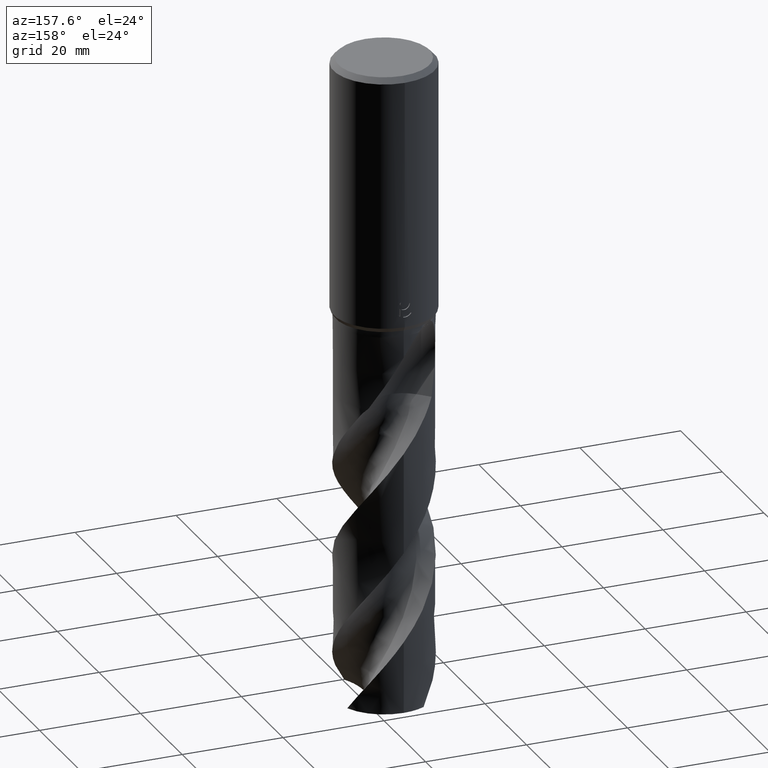
[diagram: clean part render]
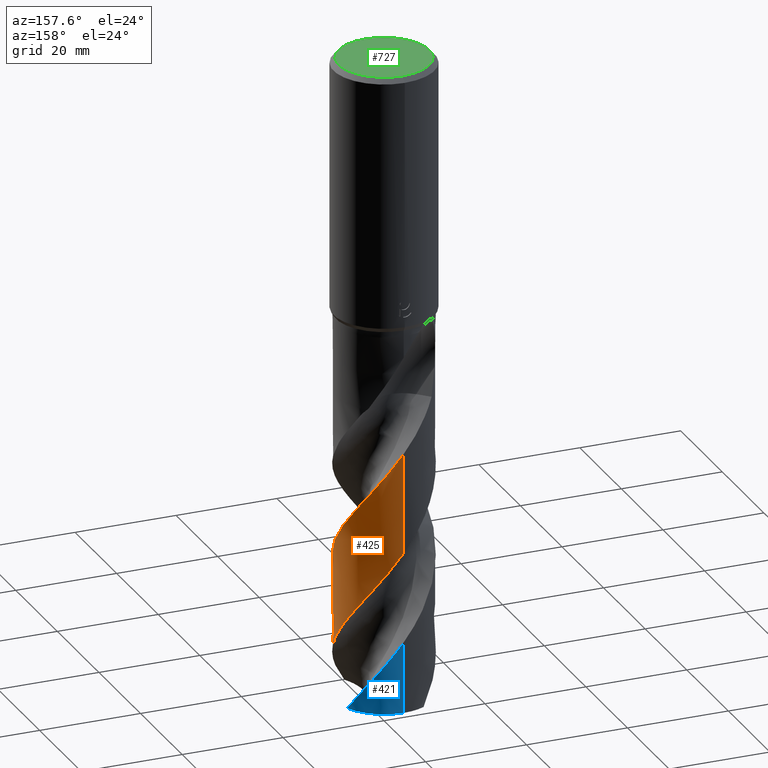
[diagram: same view with three faces highlighted in distinct colors, each labeled with its STEP entity id]
A machine part, auxiliary view with three faces highlighted in distinct colors.
Their STEP definitions:

[orange] entity #425 — the highlighted conical surface has half-angle 0 deg.
#321=EDGE_CURVE('',#641,#747,#835,.T.);
#325=EDGE_CURVE('',#587,#641,#839,.T.);
#405=VERTEX_POINT('',#926);
#413=EDGE_CURVE('',#405,#579,#935,.T.);
#425=ADVANCED_FACE('',(#948),#949,.T.);
#463=EDGE_CURVE('',#587,#579,#989,.T.);
#579=VERTEX_POINT('',#1120);
#587=VERTEX_POINT('',#1128);
#599=EDGE_CURVE('',#405,#747,#1141,.T.);
#641=VERTEX_POINT('',#1186);
#747=VERTEX_POINT('',#1299);
#835=LINE('',#2308,#2309);
#839=CIRCLE('',#2408,9.5);
#926=CARTESIAN_POINT('',(4.14276983890462E-012,9.49993127510534,-75.6259285171652));
#935=LINE('',#3554,#3555);
#948=FACE_OUTER_BOUND('',#3598,.T.);
#949=CONICAL_SURFACE('',#3599,9.49995,1.32376195591355E-006);
#989=B_SPLINE_CURVE_WITH_KNOTS('',3,(#4107,#4108,#4109,#4110,#4111,#4112,#4113,#4114,#4115,#4116,#4117,#4118,#4119,#4120,#4121,#4122,#4123,#4124,#4125,#4126,#4127,#4128,#4129,#4130,#4131,#4132,#4133,#4134,#4135,#4136,#4137,#4138,#4139,#4140,#4141,#4142,#4143,#4144,#4145,#4146,#4147,#4148,#4149,#4150,#4151,#4152,#4153,#4154,#4155,#4156,#4157,#4158,#4159,#4160,#4161,#4162,#4163,#4164,#4165,#4166,#4167,#4168,#4169,#4170,#4171,#4172,#4173,#4174,#4175,#4176,#4177,#4178),.UNSPECIFIED.,.F.,.F.,(4,2,2,2,2,2,2,2,2,2,2,2,2,2,2,2,2,2,2,2,2,2,2,2,2,2,2,2,2,2,2,2,2,2,2,4),(0.0,2.25914260804812,7.05540093486468,10.0013602743237,11.525308779896,15.6076635601463,17.1779518729622,20.1502651261482,22.9890170960466,25.797256080281,27.5445273664996,30.61587926302,32.2979809699629,35.9382480406374,37.4930035743223,41.2401558777265,42.7231155409448,46.6683371101798,48.4831300425192,51.9973399333413,52.8639731704536,57.517325872158,57.8185143682855,62.6662501608931,63.2658289232396,66.782459539289,69.0293320031936,69.5440674064811,71.1530631405118,74.2464719782456,75.5103423426842,77.4462231728296,78.3217903911569,79.5610317429915,81.0145387714411,83.9803835950082),.UNSPECIFIED.);
#1120=CARTESIAN_POINT('',(-2.18987726822183E-014,9.49995761745558,-95.5255412277767));
#1128=CARTESIAN_POINT('',(4.36296385263962,-8.43887115795472,-127.542282774471));
#1141=B_SPLINE_CURVE_WITH_KNOTS('',3,(#4895,#4896,#4897,#4898,#4899,#4900,#4901,#4902,#4903,#4904,#4905,#4906,#4907,#4908,#4909,#4910,#4911,#4912,#4913,#4914,#4915,#4916,#4917,#4918,#4919,#4920,#4921,#4922,#4923,#4924,#4925,#4926,#4927,#4928,#4929,#4930,#4931,#4932,#4933,#4934,#4935,#4936,#4937,#4938,#4939,#4940,#4941,#4942,#4943,#4944,#4945,#4946,#4947,#4948,#4949,#4950,#4951,#4952,#4953,#4954,#4955,#4956,#4957,#4958,#4959,#4960,#4961,#4962,#4963,#4964,#4965,#4966,#4967,#4968,#4969,#4970,#4971,#4972,#4973,#4974,#4975,#4976,#4977,#4978,#4979,#4980,#4981,#4982,#4983,#4984,#4985,#4986,#4987,#4988),.UNSPECIFIED.,.F.,.F.,(4,2,2,2,2,2,2,2,2,2,2,2,2,2,2,2,2,2,2,2,2,2,2,2,2,2,2,2,2,2,2,2,2,2,2,2,2,2,2,2,2,2,2,2,2,2,4),(0.0,0.251873114745319,1.49003797662436,1.88508295611504,2.13092462729175,2.35716562531013,3.13353898619032,4.18013328612654,4.8391896154843,5.93775068866211,6.81496746771318,8.02790693801513,9.75036124954665,13.2764121119158,14.4454626413057,15.6066048524763,17.9265469814777,19.0963696375069,21.4109942116154,23.7401063518811,26.0705932205949,28.3953471666892,29.5638751434541,30.7172765029423,33.0360551046798,34.2055673908724,36.5191789956901,38.8491949944035,41.1763968547088,43.5015904945778,44.6696144105601,45.820993287927,48.1405526795639,49.3096704018559,51.6196709283864,53.9501572730986,56.2743507798361,58.600024314909,59.68138169211,60.6859259939135,64.4629973942198,65.8887789725559,68.392227658279,69.3331984067516,70.9795003736366,73.4517760775509,75.9230375517967),.UNSPECIFIED.);
#1186=CARTESIAN_POINT('',(1.16176566323862E-015,-9.5,-127.542282774471));
#1299=CARTESIAN_POINT('',(1.56799148186068E-014,-9.49998125251191,-113.380002318758));
#2308=CARTESIAN_POINT('',(1.16175954020685E-015,-9.49995,-89.7711413872355));
#2309=VECTOR('',#5714,1.0);
#2408=AXIS2_PLACEMENT_3D('',#5715,#5716,#5717);
#3554=CARTESIAN_POINT('',(-1.16498028599213E-015,9.49995,-89.7711413872355));
#3555=VECTOR('',#5795,1.0);
#3598=EDGE_LOOP('',(#5808,#5809,#5810,#5811,#5812));
#3599=AXIS2_PLACEMENT_3D('',#5813,#5814,#5815);
#4107=CARTESIAN_POINT('',(4.36296385263967,-8.4388711579547,-127.542282774471));
#4108=CARTESIAN_POINT('',(4.77764588320916,-8.22447635244549,-126.951389998755));
#4109=CARTESIAN_POINT('',(5.17617352824739,-7.97970162147269,-126.362923391725));
#4110=CARTESIAN_POINT('',(6.3602270922041,-7.12614995297554,-124.519380739767));
#4111=CARTESIAN_POINT('',(7.06904182239898,-6.42353516937231,-123.266119312125));
#4112=CARTESIAN_POINT('',(8.01669578770786,-5.13355460180098,-121.243028010344));
#4113=CARTESIAN_POINT('',(8.32912832144566,-4.60933773999974,-120.478457640748));
#4114=CARTESIAN_POINT('',(8.72375514156107,-3.77426135355782,-119.310323845255));
#4115=CARTESIAN_POINT('',(8.84385590308211,-3.48345648625017,-118.910763459138));
#4116=CARTESIAN_POINT('',(9.23123673068226,-2.39596687401022,-117.44630130204));
#4117=CARTESIAN_POINT('',(9.40701070509516,-1.57011389552108,-116.393844648197));
#4118=CARTESIAN_POINT('',(9.49668746491462,-0.408990463587487,-114.918825829397));
#4119=CARTESIAN_POINT('',(9.50511437985892,-0.0854240378964639,-114.507723996012));
#4120=CARTESIAN_POINT('',(9.4816246587433,0.850886621583048,-113.322128790492));
#4121=CARTESIAN_POINT('',(9.40701227486516,1.46076336116747,-112.551823166602));
#4122=CARTESIAN_POINT('',(9.1470953471277,2.63121236531357,-111.036252490269));
#4123=CARTESIAN_POINT('',(8.96763252664318,3.18971028141067,-110.292857920638));
#4124=CARTESIAN_POINT('',(8.51031051538903,4.26144648721813,-108.820122199136));
#4125=CARTESIAN_POINT('',(8.23470770643015,4.77222393184804,-108.092071770265));
#4126=CARTESIAN_POINT('',(7.71537660186651,5.55447030561106,-106.903366561256));
#4127=CARTESIAN_POINT('',(7.49946974831435,5.8427018295679,-106.445920578639));
#4128=CARTESIAN_POINT('',(6.85972237965571,6.60261541113717,-105.188453351552));
#4129=CARTESIAN_POINT('',(6.40449819725765,7.04507544127082,-104.392951045087));
#4130=CARTESIAN_POINT('',(5.63679647428607,7.65482013225779,-103.153245915014));
#4131=CARTESIAN_POINT('',(5.35385747505981,7.85527360231498,-102.713113168334));
#4132=CARTESIAN_POINT('',(4.42727944650669,8.43856136353246,-101.32527587159));
#4133=CARTESIAN_POINT('',(3.74842353943804,8.76130179382066,-100.385935988457));
#4134=CARTESIAN_POINT('',(2.73497080035511,9.10338906609263,-99.0327679035149));
#4135=CARTESIAN_POINT('',(2.42708322504284,9.19024374883666,-98.6265073616033));
#4136=CARTESIAN_POINT('',(1.36511788501554,9.43283693599489,-97.2457813926081));
#4137=CARTESIAN_POINT('',(0.596421446326787,9.51245982942855,-96.2806456145306));
#4138=CARTESIAN_POINT('',(-0.478581286916375,9.49279090343605,-94.9198587479994));
#4139=CARTESIAN_POINT('',(-0.782550809650458,9.47256239604047,-94.5328283230996));
#4140=CARTESIAN_POINT('',(-1.88944712131744,9.34531387319444,-93.1207429123551));
#4141=CARTESIAN_POINT('',(-2.67865661557223,9.15038706800222,-92.1067983481987));
#4142=CARTESIAN_POINT('',(-3.78094908476615,8.72308630980238,-90.6092300345986));
#4143=CARTESIAN_POINT('',(-4.12025865071925,8.56806347924593,-90.1356069902512));
#4144=CARTESIAN_POINT('',(-5.08814664852498,8.05491724081931,-88.7496995674996));
#4145=CARTESIAN_POINT('',(-5.68537789224365,7.6449966694212,-87.8441860258201));
#4146=CARTESIAN_POINT('',(-6.36434480029343,7.05519257868919,-86.7043054137868));
#4147=CARTESIAN_POINT('',(-6.49518827706931,6.93491795570115,-86.4784404457456));
#4148=CARTESIAN_POINT('',(-7.30684351360746,6.14571080741803,-85.0425918888389));
#4149=CARTESIAN_POINT('',(-7.88636008821459,5.38170363117374,-83.852094037882));
#4150=CARTESIAN_POINT('',(-8.37185431875411,4.49051556372619,-82.5634448283347));
#4151=CARTESIAN_POINT('',(-8.40080323957497,4.43612190238757,-82.4851202893262));
#4152=CARTESIAN_POINT('',(-8.88720273772537,3.50034379911762,-81.145837031786));
#4153=CARTESIAN_POINT('',(-9.20415598846333,2.55316996099861,-79.9077618093154));
#4154=CARTESIAN_POINT('',(-9.3890266954281,1.45259516800684,-78.4926989243835));
#4155=CARTESIAN_POINT('',(-9.4070183580553,1.33111886133409,-78.3367856043637));
#4156=CARTESIAN_POINT('',(-9.51442868766982,0.494113993314,-77.2668158732312));
#4157=CARTESIAN_POINT('',(-9.52459922301438,-0.230009635126213,-76.3578198335647));
#4158=CARTESIAN_POINT('',(-9.40628653071801,-1.40840986928903,-74.861807616292));
#4159=CARTESIAN_POINT('',(-9.32680751806049,-1.86295146475243,-74.279608248671));
#4160=CARTESIAN_POINT('',(-9.18950801966916,-2.410948435036,-73.561222744101));
#4161=CARTESIAN_POINT('',(-9.16232347374823,-2.51226975052275,-73.4275106804635));
#4162=CARTESIAN_POINT('',(-9.04311644870841,-2.92890121634083,-72.8761188767026));
#4163=CARTESIAN_POINT('',(-8.93594247637993,-3.24154362511077,-72.4580874524149));
#4164=CARTESIAN_POINT('',(-8.57370159998169,-4.14089746060759,-71.2443884299419));
#4165=CARTESIAN_POINT('',(-8.30317942212871,-4.64329301500801,-70.5600153028734));
#4166=CARTESIAN_POINT('',(-7.92403508000704,-5.24410875757151,-69.6285162532223));
#4167=CARTESIAN_POINT('',(-7.81828295083994,-5.39922875518674,-69.368142897153));
#4168=CARTESIAN_POINT('',(-7.56838268413403,-5.74764287952459,-68.7771589126529));
#4169=CARTESIAN_POINT('',(-7.4321118422092,-5.91920295941513,-68.474212888141));
#4170=CARTESIAN_POINT('',(-7.28687585600759,-6.09549071118236,-68.1734893473062));
#4171=CARTESIAN_POINT('',(-7.24011900903626,-6.15098919948174,-68.0810557842937));
#4172=CARTESIAN_POINT('',(-7.12321932143368,-6.2864327761486,-67.8604421050313));
#4173=CARTESIAN_POINT('',(-7.05160602010934,-6.36675315063628,-67.7336954147036));
#4174=CARTESIAN_POINT('',(-6.88872515047597,-6.54299126239969,-67.463153459786));
#4175=CARTESIAN_POINT('',(-6.79647566706657,-6.6389053288355,-67.3206581131709));
#4176=CARTESIAN_POINT('',(-6.50201155528191,-6.93181163335833,-66.8967119115343));
#4177=CARTESIAN_POINT('',(-6.28701600900923,-7.12837314201894,-66.6274919022216));
#4178=CARTESIAN_POINT('',(-6.05350196316577,-7.32144626355211,-66.369));
#4895=CARTESIAN_POINT('',(-6.60317748529335,6.82982492497779,-66.369));
#4896=CARTESIAN_POINT('',(-6.56732896463211,6.86448393843007,-66.4365465215058));
#4897=CARTESIAN_POINT('',(-6.53115245772172,6.89891447528343,-66.504067560524));
#4898=CARTESIAN_POINT('',(-6.31491153119111,7.10147783278723,-66.9030783631882));
#4899=CARTESIAN_POINT('',(-6.12978802051606,7.26225138847447,-67.225166283119));
#4900=CARTESIAN_POINT('',(-5.86478478241706,7.47392289166335,-67.6554609278217));
#4901=CARTESIAN_POINT('',(-5.79982235770281,7.52445502014539,-67.7588390470493));
#4902=CARTESIAN_POINT('',(-5.69263840200485,7.60559187487801,-67.9264725840121));
#4903=CARTESIAN_POINT('',(-5.65119667331119,7.63643642634561,-67.9905997011124));
#4904=CARTESIAN_POINT('',(-5.57092280035602,7.69516709509626,-68.1136881015298));
#4905=CARTESIAN_POINT('',(-5.53220069959387,7.72305285628719,-68.1725699291273));
#4906=CARTESIAN_POINT('',(-5.35943519596365,7.84549903435116,-68.4335023069995));
#4907=CARTESIAN_POINT('',(-5.223577808885,7.93666342126009,-68.6347568907285));
#4908=CARTESIAN_POINT('',(-4.89238725613242,8.14639367297698,-69.1219739842731));
#4909=CARTESIAN_POINT('',(-4.70046423870064,8.25854854144445,-69.4013125337165));
#4910=CARTESIAN_POINT('',(-4.38139139414728,8.43039547211335,-69.861322458339));
#4911=CARTESIAN_POINT('',(-4.25674873951694,8.4940094764569,-70.0396320764643));
#4912=CARTESIAN_POINT('',(-3.92093419463609,8.65616358943372,-70.5145064642179));
#4913=CARTESIAN_POINT('',(-3.70713195136983,8.74987848816062,-70.8110692273253));
#4914=CARTESIAN_POINT('',(-3.3161625420964,8.90429584709822,-71.3434772458968));
#4915=CARTESIAN_POINT('',(-3.14080204602096,8.96765527605901,-71.5785590650312));
#4916=CARTESIAN_POINT('',(-2.71796832550692,9.10647865854467,-72.1400085106308));
#4917=CARTESIAN_POINT('',(-2.46950387412205,9.17696958552703,-72.4655141253206));
#4918=CARTESIAN_POINT('',(-1.86220314811729,9.32282948984543,-73.2544406543365));
#4919=CARTESIAN_POINT('',(-1.50154171281122,9.38764179667307,-73.7180482679948));
#4920=CARTESIAN_POINT('',(-0.394982224153874,9.52120681604962,-75.1295685211574));
#4921=CARTESIAN_POINT('',(0.356824110620436,9.52277616876354,-76.0740020629149));
#4922=CARTESIAN_POINT('',(1.34820699470703,9.40706326233914,-77.3357970957648));
#4923=CARTESIAN_POINT('',(1.5938064241418,9.36857869882808,-77.6498578442771));
#4924=CARTESIAN_POINT('',(2.07972503470747,9.27277805156567,-78.2761642780358));
#4925=CARTESIAN_POINT('',(2.31982935373545,9.21563886960738,-78.5881102020836));
#4926=CARTESIAN_POINT('',(3.0320026259064,9.01657466987166,-79.524144337267));
#4927=CARTESIAN_POINT('',(3.49569350105118,8.84714670114994,-80.1475236755133));
#4928=CARTESIAN_POINT('',(4.17037865470841,8.53923752251155,-81.0857114486814));
#4929=CARTESIAN_POINT('',(4.39245356293851,8.42716142376315,-81.4000029927528));
#4930=CARTESIAN_POINT('',(5.04020700830114,8.06767292430898,-82.3364983064907));
#4931=CARTESIAN_POINT('',(5.4511136893381,7.79589854592869,-82.9574647369352));
#4932=CARTESIAN_POINT('',(6.22930347603858,7.18954244353191,-84.2062106372369));
#4933=CARTESIAN_POINT('',(6.59538294715621,6.85528969271583,-84.8316864138778));
#4934=CARTESIAN_POINT('',(7.27249029461201,6.13231431710433,-86.0842208862128));
#4935=CARTESIAN_POINT('',(7.58223408804789,5.74489928339091,-86.7091394679847));
#4936=CARTESIAN_POINT('',(8.13770281569514,4.92653642859887,-87.9610206923176));
#4937=CARTESIAN_POINT('',(8.38287579525247,4.49673548508192,-88.5855420175262));
#4938=CARTESIAN_POINT('',(8.69942968048037,3.82500575465767,-89.5246872623625));
#4939=CARTESIAN_POINT('',(8.79647904779454,3.59621219548063,-89.8386358542054));
#4940=CARTESIAN_POINT('',(8.9712982684012,3.13448894035594,-90.4627654590569));
#4941=CARTESIAN_POINT('',(9.04919641962868,2.90193084875982,-90.7725805173435));
#4942=CARTESIAN_POINT('',(9.25632906731173,2.19369687091724,-91.7063066903079));
#4943=CARTESIAN_POINT('',(9.3576638750397,1.7106109698049,-92.3294857742792));
#4944=CARTESIAN_POINT('',(9.45303066941636,0.975269987537503,-93.2674755374684));
#4945=CARTESIAN_POINT('',(9.47532036044268,0.727528844098924,-93.5817595984354));
#4946=CARTESIAN_POINT('',(9.51267928342853,-0.0122039915376028,-94.5181383291233));
#4947=CARTESIAN_POINT('',(9.49927821860271,-0.504555295613595,-95.1391219631244));
#4948=CARTESIAN_POINT('',(9.39609475054517,-1.4858455165105,-96.3881236003335));
#4949=CARTESIAN_POINT('',(9.30589105589529,-1.97359658343492,-97.0139164825064));
#4950=CARTESIAN_POINT('',(9.05026974719046,-2.93031538429743,-98.2660440311541));
#4951=CARTESIAN_POINT('',(8.88542396815439,-3.39751258289831,-98.8902741873441));
#4952=CARTESIAN_POINT('',(8.48479619997015,-4.30135953488037,-100.141667161981));
#4953=CARTESIAN_POINT('',(8.24957210198785,-4.73690907101145,-100.76640091437));
#4954=CARTESIAN_POINT('',(7.84675177390621,-5.36092471573631,-101.705709951034));
#4955=CARTESIAN_POINT('',(7.70391567079431,-5.56423826322275,-102.019582741508));
#4956=CARTESIAN_POINT('',(7.40474492906798,-5.95643233548153,-102.64316305941));
#4957=CARTESIAN_POINT('',(7.24881333060935,-6.1452403210145,-102.952532305363));
#4958=CARTESIAN_POINT('',(6.75740732261694,-6.69551544288399,-103.886133384966));
#4959=CARTESIAN_POINT('',(6.40082293559544,-7.03719456896029,-104.509604937484));
#4960=CARTESIAN_POINT('',(5.82696935196307,-7.50717395559906,-105.447864507728));
#4961=CARTESIAN_POINT('',(5.6285202893117,-7.65709104777221,-105.762096012885));
#4962=CARTESIAN_POINT('',(5.02103331745221,-8.07960953074369,-106.697574496804));
#4963=CARTESIAN_POINT('',(4.59668537864519,-8.32832477792973,-107.317810219376));
#4964=CARTESIAN_POINT('',(3.70980019842474,-8.75969279029778,-108.566195187211));
#4965=CARTESIAN_POINT('',(3.24797929964719,-8.94124350540374,-109.192181617662));
#4966=CARTESIAN_POINT('',(2.30116509934592,-9.23030610010922,-110.443831510364));
#4967=CARTESIAN_POINT('',(1.81802722280053,-9.33747184853559,-111.067430069856));
#4968=CARTESIAN_POINT('',(0.83946654860684,-9.47571853521388,-112.318392138256));
#4969=CARTESIAN_POINT('',(0.345233219546849,-9.50657974256949,-112.943345390371));
#4970=CARTESIAN_POINT('',(-0.379223082398416,-9.49519504516363,-113.8596450178));
#4971=CARTESIAN_POINT('',(-0.608975397304745,-9.48323352950569,-114.150306563073));
#4972=CARTESIAN_POINT('',(-1.05093303105748,-9.44409200438642,-114.711218262053));
#4973=CARTESIAN_POINT('',(-1.26301686630188,-9.41807247849306,-114.981189794455));
#4974=CARTESIAN_POINT('',(-2.26734628432164,-9.26033278853209,-116.267489096135));
#4975=CARTESIAN_POINT('',(-3.04199808248969,-9.03558041162184,-117.280417848942));
#4976=CARTESIAN_POINT('',(-4.05754435369236,-8.59523836043132,-118.679638596713));
#4977=CARTESIAN_POINT('',(-4.32978690798932,-8.46136040047058,-119.062672249053));
#4978=CARTESIAN_POINT('',(-5.06094150209156,-8.05729315787564,-120.1199671873));
#4979=CARTESIAN_POINT('',(-5.50442310293738,-7.76109806822156,-120.793101425136));
#4980=CARTESIAN_POINT('',(-6.07730713022987,-7.30453571837521,-121.71982111246));
#4981=CARTESIAN_POINT('',(-6.22985778810328,-7.17487350704972,-121.972879535836));
#4982=CARTESIAN_POINT('',(-6.63779909921552,-6.8053052987379,-122.668832975152));
#4983=CARTESIAN_POINT('',(-6.88414069887218,-6.55599902388618,-123.111167489716));
#4984=CARTESIAN_POINT('',(-7.46452412273043,-5.89977455102454,-124.21920839664));
#4985=CARTESIAN_POINT('',(-7.7795467921135,-5.47767801525377,-124.882932258801));
#4986=CARTESIAN_POINT('',(-8.33632943135287,-4.58603566152112,-126.213228670419));
#4987=CARTESIAN_POINT('',(-8.57727900509367,-4.11785368240793,-126.877483332061));
#4988=CARTESIAN_POINT('',(-8.77829669865343,-3.63201143588652,-127.542282774471));
#5714=DIRECTION('',(-1.6210873021596E-022,1.32376195591317E-006,0.999999999999124));
#5715=CARTESIAN_POINT('',(0.0,0.0,-127.542282774471));
#5716=DIRECTION('',(0.0,0.0,-1.0));
#5717=DIRECTION('',(0.0,1.0,0.0));
#5795=DIRECTION('',(-1.6210873021596E-022,1.32376195591317E-006,-0.999999999999124));
#5808=ORIENTED_EDGE('',*,*,#413,.F.);
#5809=ORIENTED_EDGE('',*,*,#599,.T.);
#5810=ORIENTED_EDGE('',*,*,#321,.F.);
#5811=ORIENTED_EDGE('',*,*,#325,.F.);
#5812=ORIENTED_EDGE('',*,*,#463,.T.);
#5813=CARTESIAN_POINT('',(0.0,0.0,-89.7711413872355));
#5814=DIRECTION('',(0.0,-0.0,-1.0));
#5815=DIRECTION('',(0.0,1.0,0.0));

[blue] entity #421 — the highlighted conical surface has half-angle 0 deg.
#357=EDGE_CURVE('',#437,#395,#873,.T.);
#395=VERTEX_POINT('',#916);
#421=ADVANCED_FACE('',(#943),#944,.T.);
#437=VERTEX_POINT('',#962);
#475=VERTEX_POINT('',#1002);
#569=EDGE_CURVE('',#437,#475,#1109,.T.);
#585=EDGE_CURVE('',#395,#475,#1126,.T.);
#873=LINE('',#2479,#2480);
#916=CARTESIAN_POINT('',(-1.16176566158982E-015,9.5,-127.542282774471));
#943=FACE_OUTER_BOUND('',#3593,.T.);
#944=CONICAL_SURFACE('',#3594,9.49995,1.32376195591355E-006);
#962=CARTESIAN_POINT('',(1.27417946126216E-014,9.49998125251192,-113.380002318758));
#1002=CARTESIAN_POINT('',(8.77829669865339,3.63201143588659,-127.542282774471));
#1109=B_SPLINE_CURVE_WITH_KNOTS('',3,(#4676,#4677,#4678,#4679,#4680,#4681,#4682,#4683,#4684,#4685,#4686,#4687,#4688,#4689,#4690,#4691,#4692,#4693,#4694,#4695,#4696,#4697,#4698,#4699,#4700,#4701,#4702,#4703,#4704,#4705,#4706,#4707,#4708,#4709,#4710,#4711,#4712,#4713,#4714,#4715,#4716,#4717,#4718,#4719,#4720,#4721,#4722,#4723,#4724,#4725,#4726,#4727,#4728,#4729,#4730,#4731,#4732,#4733,#4734,#4735,#4736,#4737,#4738,#4739,#4740,#4741,#4742,#4743,#4744,#4745,#4746,#4747,#4748,#4749,#4750,#4751,#4752,#4753,#4754,#4755,#4756,#4757,#4758,#4759,#4760,#4761,#4762,#4763,#4764,#4765,#4766,#4767,#4768,#4769),.UNSPECIFIED.,.F.,.F.,(4,2,2,2,2,2,2,2,2,2,2,2,2,2,2,2,2,2,2,2,2,2,2,2,2,2,2,2,2,2,2,2,2,2,2,2,2,2,2,2,2,2,2,2,2,2,4),(0.0,0.251873119474417,1.49003797487971,1.88508295319793,2.13092462434853,2.35716562233721,3.13353898347718,4.18013330538902,4.83918963152517,5.93775065587762,6.81496857982327,8.02790787915014,9.75036210045493,13.2764124544649,14.4454629875948,15.6066051960238,17.9265473335705,19.0963699913995,21.4109945508094,23.7401067032691,26.0705935709527,28.3953475288639,29.5638755078165,30.7172768610607,33.0360554741393,34.205567762644,36.5191793595424,38.8491953685156,41.1763972234209,43.5015908754758,44.669614792135,45.8209936645345,48.1405530675708,49.3096707922411,51.6196713102826,53.9501576620426,56.2743511680703,58.6000247152023,59.6813820773217,60.6859263624276,64.4629977253642,65.888779279663,68.3922279306903,69.333198665928,70.9795006092645,73.4517762786799,75.9230377183362),.UNSPECIFIED.);
#1126=CIRCLE('',#4791,9.5);
#2479=CARTESIAN_POINT('',(-1.16175953855805E-015,9.49995,-89.7711413872355));
#2480=VECTOR('',#5741,1.0);
#3593=EDGE_LOOP('',(#5801,#5802,#5803));
#3594=AXIS2_PLACEMENT_3D('',#5804,#5805,#5806);
#4676=CARTESIAN_POINT('',(6.60317748529335,-6.82982492497779,-66.369));
#4677=CARTESIAN_POINT('',(6.56732896395903,-6.86448393908082,-66.436546522774));
#4678=CARTESIAN_POINT('',(6.53115245635342,-6.89891447658585,-66.504067563078));
#4679=CARTESIAN_POINT('',(6.3149115299211,-7.10147783387571,-66.903078365389));
#4680=CARTESIAN_POINT('',(6.12978801977891,-7.26225138908425,-67.2251662843483));
#4681=CARTESIAN_POINT('',(5.86478478188207,-7.47392289208394,-67.6554609286801));
#4682=CARTESIAN_POINT('',(5.79982235722404,-7.52445502051112,-67.7588390478024));
#4683=CARTESIAN_POINT('',(5.69263840179053,-7.60559187503814,-67.9264725843445));
#4684=CARTESIAN_POINT('',(5.65119667314177,-7.63643642647113,-67.9905997013739));
#4685=CARTESIAN_POINT('',(5.57092280014327,-7.69516709525039,-68.1136881018543));
#4686=CARTESIAN_POINT('',(5.5322006993833,-7.72305285643811,-68.1725699294469));
#4687=CARTESIAN_POINT('',(5.35943519568297,-7.84549903454466,-68.4335023074185));
#4688=CARTESIAN_POINT('',(5.22357780849434,-7.93666342151522,-68.6347568913061));
#4689=CARTESIAN_POINT('',(4.89238725200132,-8.14639367558284,-69.1219739903466));
#4690=CARTESIAN_POINT('',(4.7004642307511,-8.25854854610104,-69.401312545323));
#4691=CARTESIAN_POINT('',(4.38139138210525,-8.4303954783629,-69.8613224756083));
#4692=CARTESIAN_POINT('',(4.25674872801167,-8.49400948220576,-70.0396320928485));
#4693=CARTESIAN_POINT('',(3.92093419370303,-8.65616358956185,-70.5145064653467));
#4694=CARTESIAN_POINT('',(3.70713196104935,-8.74987848372962,-70.8110692137834));
#4695=CARTESIAN_POINT('',(3.31616233855425,-8.90429592797499,-71.343477523361));
#4696=CARTESIAN_POINT('',(3.1408016110143,-8.96765543348787,-71.5785596485852));
#4697=CARTESIAN_POINT('',(2.71796768364287,-9.1064788490791,-72.1400093546992));
#4698=CARTESIAN_POINT('',(2.46950326296371,-9.17696974893974,-72.4655149234991));
#4699=CARTESIAN_POINT('',(1.86220258410466,-9.32282960169812,-73.2544413810069));
#4700=CARTESIAN_POINT('',(1.50154116498336,-9.38764188352505,-73.7180489701718));
#4701=CARTESIAN_POINT('',(0.394981797080532,-9.52120682516674,-75.1295690590272));
#4702=CARTESIAN_POINT('',(-0.356824426973428,-9.52277614827244,-76.0740024630786));
#4703=CARTESIAN_POINT('',(-1.34820719978957,-9.40706323295377,-77.3357973576078));
#4704=CARTESIAN_POINT('',(-1.59380662861743,-9.36857866404848,-77.6498581064332));
#4705=CARTESIAN_POINT('',(-2.07972523618513,-9.27277800634745,-78.2761645391085));
#4706=CARTESIAN_POINT('',(-2.31982955284709,-9.2156388194545,-78.5881104618288));
#4707=CARTESIAN_POINT('',(-3.03200282022896,-9.0165746045621,-79.5241445965765));
#4708=CARTESIAN_POINT('',(-3.49569369237579,-8.84714662559732,-80.1475239355353));
#4709=CARTESIAN_POINT('',(-4.17037883993012,-8.53923743204956,-81.0857117092812));
#4710=CARTESIAN_POINT('',(-4.39245374559397,-8.42716132855404,-81.4000032530859));
#4711=CARTESIAN_POINT('',(-5.04020717935877,-8.06767281718645,-82.3364985612037));
#4712=CARTESIAN_POINT('',(-5.45111385114966,-7.79589843251718,-82.9574649867071));
#4713=CARTESIAN_POINT('',(-6.22930362330623,-7.18954231603338,-84.2062108835002));
#4714=CARTESIAN_POINT('',(-6.59538308864851,-6.85528955669688,-84.8316866618132));
#4715=CARTESIAN_POINT('',(-7.27249042120494,-6.13231416686873,-86.0842211341981));
#4716=CARTESIAN_POINT('',(-7.58223420582164,-5.74489912783116,-86.7091397145258));
#4717=CARTESIAN_POINT('',(-8.1377029167724,-4.92653626177327,-87.961020938963));
#4718=CARTESIAN_POINT('',(-8.38287588817914,-4.49673531200497,-88.5855422657487));
#4719=CARTESIAN_POINT('',(-8.69942976001206,-3.82500557377009,-89.5246875121231));
#4720=CARTESIAN_POINT('',(-8.79647912253519,-3.59621201265578,-89.8386361038093));
#4721=CARTESIAN_POINT('',(-8.9712983328452,-3.13448875576243,-90.4627657061389));
#4722=CARTESIAN_POINT('',(-9.04919647870367,-2.90193066438135,-90.7725807621672));
#4723=CARTESIAN_POINT('',(-9.25632911188926,-2.19369668308835,-91.7063069344376));
#4724=CARTESIAN_POINT('',(-9.35766391004626,-1.71061077868816,-92.3294860198512));
#4725=CARTESIAN_POINT('',(-9.45303068946396,-0.975269793209317,-93.2674757844495));
#4726=CARTESIAN_POINT('',(-9.47532037539241,-0.727528649373846,-93.5817598452777));
#4727=CARTESIAN_POINT('',(-9.51267928303701,0.0122041841635203,-94.5181385722579));
#4728=CARTESIAN_POINT('',(-9.49927820838909,0.504555485150675,-95.1391222030793));
#4729=CARTESIAN_POINT('',(-9.39609472123268,1.48584570221717,-96.388123838004));
#4730=CARTESIAN_POINT('',(-9.3058910167287,1.97359676838131,-97.0139167213018));
#4731=CARTESIAN_POINT('',(-9.05026968921457,2.93031556297424,-98.266044268255));
#4732=CARTESIAN_POINT('',(-8.88542390177284,3.39751275616411,-98.8902744218214));
#4733=CARTESIAN_POINT('',(-8.48479611656557,4.30135969956399,-100.141667395396));
#4734=CARTESIAN_POINT('',(-8.24957200941492,4.7369092323875,-100.766401149436));
#4735=CARTESIAN_POINT('',(-7.84675166845045,5.36092487007266,-101.705710187293));
#4736=CARTESIAN_POINT('',(-7.70391556159159,5.56423841439905,-102.019582977183));
#4737=CARTESIAN_POINT('',(-7.40474481344827,5.95643247914748,-102.643163292462));
#4738=CARTESIAN_POINT('',(-7.24881321239238,6.14524046039473,-102.952532536493));
#4739=CARTESIAN_POINT('',(-6.75740719425368,6.69551557252032,-103.886133615673));
#4740=CARTESIAN_POINT('',(-6.40082279977045,7.03719469259367,-104.50960516961));
#4741=CARTESIAN_POINT('',(-5.82696920605054,7.50717406885272,-105.447864741232));
#4742=CARTESIAN_POINT('',(-5.62852014054174,7.65709115712674,-105.762096246245));
#4743=CARTESIAN_POINT('',(-5.02103316297714,8.07960962656154,-106.697574726252));
#4744=CARTESIAN_POINT('',(-4.59668522202638,8.32832486419646,-107.317810445428));
#4745=CARTESIAN_POINT('',(-3.70980003626753,8.75969285898945,-108.566195409821));
#4746=CARTESIAN_POINT('',(-3.24797913384517,8.94124356565065,-109.192181840475));
#4747=CARTESIAN_POINT('',(-2.30116492914014,9.23030614247163,-110.443831731749));
#4748=CARTESIAN_POINT('',(-1.81802705194892,9.33747188172765,-111.067430289815));
#4749=CARTESIAN_POINT('',(-0.83946637530835,9.47571855063603,-112.318392358247));
#4750=CARTESIAN_POINT('',(-0.345233044315785,9.5065797490061,-112.943345611922));
#4751=CARTESIAN_POINT('',(0.379223255067798,9.49519503817697,-113.859645236233));
#4752=CARTESIAN_POINT('',(0.608975566000796,9.48323351858148,-114.150306776725));
#4753=CARTESIAN_POINT('',(1.05093319125585,9.44409198646768,-114.711218465786));
#4754=CARTESIAN_POINT('',(1.26301702200371,9.41807245751972,-114.981189993123));
#4755=CARTESIAN_POINT('',(2.26734642350548,9.26033275358307,-116.267489277209));
#4756=CARTESIAN_POINT('',(3.04199820874608,9.03558036823438,-117.280418017207));
#4757=CARTESIAN_POINT('',(4.05754445977954,8.59523831014453,-118.679638745028));
#4758=CARTESIAN_POINT('',(4.32978700719178,8.46136034949678,-119.062672390087));
#4759=CARTESIAN_POINT('',(5.0609415840037,8.05729310584805,-120.119967309998));
#4760=CARTESIAN_POINT('',(5.5044231746928,7.76109801673638,-120.793101536775));
#4761=CARTESIAN_POINT('',(6.07730718881284,7.30453566954457,-121.719821208893));
#4762=CARTESIAN_POINT('',(6.22985784314959,7.17487345916158,-121.972879628076));
#4763=CARTESIAN_POINT('',(6.63779914475541,6.80530525401712,-122.668833055765));
#4764=CARTESIAN_POINT('',(6.88414073868035,6.55599898177118,-123.111167562962));
#4765=CARTESIAN_POINT('',(7.46452414931052,5.89977451662334,-124.21920845152));
#4766=CARTESIAN_POINT('',(7.77954681174378,5.4776779865413,-124.882932302769));
#4767=CARTESIAN_POINT('',(8.33632943933207,4.58603564602007,-126.213228692416));
#4768=CARTESIAN_POINT('',(8.57727900842124,4.11785367436553,-126.877483343065));
#4769=CARTESIAN_POINT('',(8.77829669865342,3.63201143588658,-127.542282774471));
#4791=AXIS2_PLACEMENT_3D('',#6059,#6060,#6061);
#5741=DIRECTION('',(-1.6210873021596E-022,1.32376195591317E-006,-0.999999999999124));
#5801=ORIENTED_EDGE('',*,*,#357,.F.);
#5802=ORIENTED_EDGE('',*,*,#569,.T.);
#5803=ORIENTED_EDGE('',*,*,#585,.F.);
#5804=CARTESIAN_POINT('',(0.0,0.0,-89.7711413872355));
#5805=DIRECTION('',(0.0,-0.0,-1.0));
#5806=DIRECTION('',(0.0,1.0,0.0));
#6059=CARTESIAN_POINT('',(0.0,0.0,-127.542282774471));
#6060=DIRECTION('',(0.0,0.0,-1.0));
#6061=DIRECTION('',(0.0,1.0,0.0));

[green] entity #727 — the highlighted planar face has unit normal (-0, 0, 1).
#365=VERTEX_POINT('',#882);
#687=EDGE_CURVE('',#365,#705,#1233,.T.);
#705=VERTEX_POINT('',#1252);
#727=ADVANCED_FACE('',(#1278),#1279,.T.);
#751=EDGE_CURVE('',#705,#365,#1303,.T.);
#882=CARTESIAN_POINT('',(1.10214571844014E-015,-9.0,0.0));
#1233=CIRCLE('',#5355,9.0);
#1252=CARTESIAN_POINT('',(0.0,9.0,0.0));
#1278=FACE_OUTER_BOUND('',#5481,.T.);
#1279=PLANE('',#5482);
#1303=CIRCLE('',#5614,9.0);
#5355=AXIS2_PLACEMENT_3D('',#6156,#6157,#6158);
#5481=EDGE_LOOP('',(#6215,#6216));
#5482=AXIS2_PLACEMENT_3D('',#6217,#6218,#6219);
#5614=AXIS2_PLACEMENT_3D('',#6223,#6224,#6225);
#6156=CARTESIAN_POINT('',(0.0,0.0,0.0));
#6157=DIRECTION('',(0.0,0.0,-1.0));
#6158=DIRECTION('',(0.0,1.0,0.0));
#6215=ORIENTED_EDGE('',*,*,#751,.F.);
#6216=ORIENTED_EDGE('',*,*,#687,.F.);
#6217=CARTESIAN_POINT('',(0.0,4.5,0.0));
#6218=DIRECTION('',(-0.0,0.0,1.0));
#6219=DIRECTION('',(0.0,-1.0,0.0));
#6223=CARTESIAN_POINT('',(0.0,0.0,0.0));
#6224=DIRECTION('',(0.0,0.0,-1.0));
#6225=DIRECTION('',(0.0,1.0,0.0));